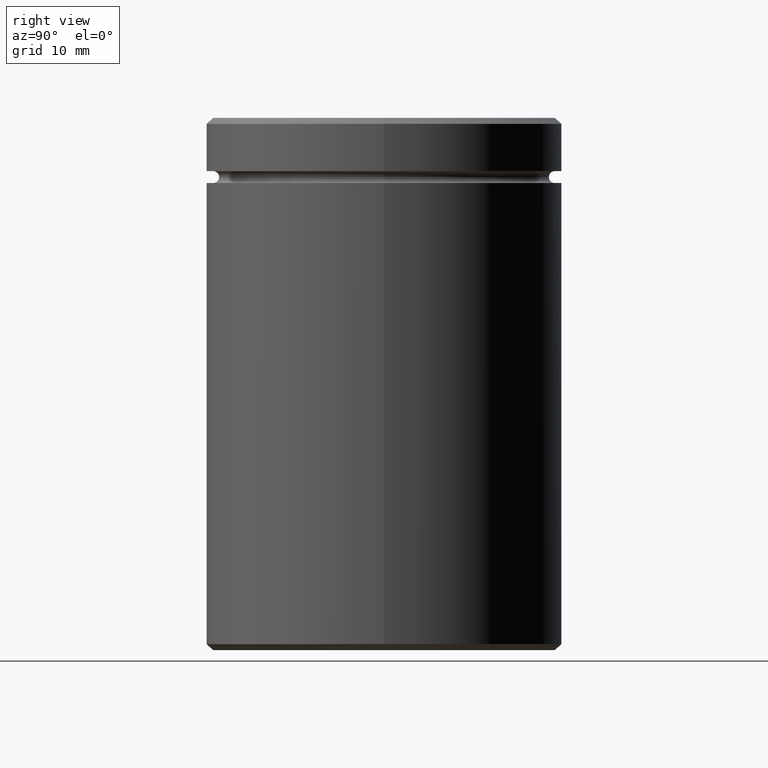
[diagram: clean part render]
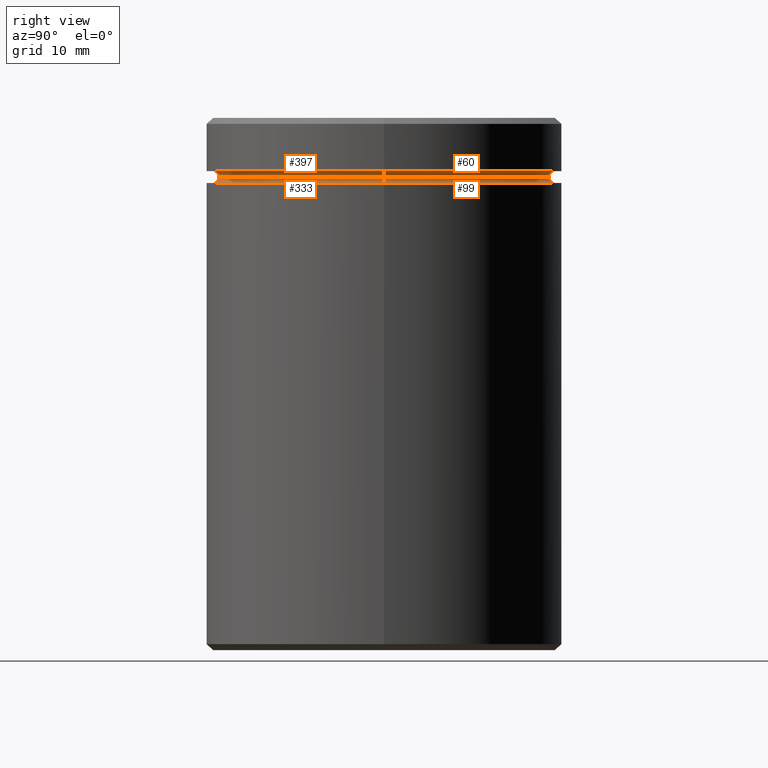
[diagram: same view with one multi-face feature highlighted, each face labeled with its STEP entity id]
A machine part, right view. The highlighted faces form ONE feature: a constant-radius fillet chain: 4 tangent blend faces with common blend radius 0.5 mm. The faces share edges in the B-rep.
Their STEP definitions:
[1] entity #99 (Torus):
#31 = CARTESIAN_POINT ( 'NONE',  ( 0.000000000000000000, 0.000000000000000000, -5.500000000000000000 ) ) ;
#33 = EDGE_CURVE ( 'NONE', #551, #413, #180, .T. ) ;
#65 = CARTESIAN_POINT ( 'NONE',  ( 14.49999999999999822, 0.000000000000000000, -5.500000000000000000 ) ) ;
#79 = ORIENTED_EDGE ( 'NONE', *, *, #549, .F. ) ;
#99 = ADVANCED_FACE ( 'NONE', ( #561 ), #241, .F. ) ;
#110 = AXIS2_PLACEMENT_3D ( 'NONE', #31, #124, #264 ) ;
#124 = DIRECTION ( 'NONE',  ( 0.000000000000000000, 0.000000000000000000, -1.000000000000000000 ) ) ;
#154 = EDGE_CURVE ( 'NONE', #171, #302, #273, .T. ) ;
#156 = DIRECTION ( 'NONE',  ( 1.000000000000000000, 0.000000000000000000, 0.000000000000000000 ) ) ;
#171 = VERTEX_POINT ( 'NONE', #411 ) ;
#174 = CIRCLE ( 'NONE', #110, 14.49999999999999822 ) ;
#180 = CIRCLE ( 'NONE', #308, 0.5000000000000004441 ) ;
#184 = ORIENTED_EDGE ( 'NONE', *, *, #33, .T. ) ;
#186 = ORIENTED_EDGE ( 'NONE', *, *, #154, .F. ) ;
#208 = AXIS2_PLACEMENT_3D ( 'NONE', #268, #350, #211 ) ;
#211 = DIRECTION ( 'NONE',  ( 1.000000000000000000, 0.000000000000000000, 0.000000000000000000 ) ) ;
#240 = DIRECTION ( 'NONE',  ( 1.224646799147353207E-16, 1.000000000000000000, 0.000000000000000000 ) ) ;
#241 = TOROIDAL_SURFACE ( 'NONE', #208, 14.49999999999999822, 0.5000000000000000000 ) ;
#264 = DIRECTION ( 'NONE',  ( 1.000000000000000000, 0.000000000000000000, 0.000000000000000000 ) ) ;
#268 = CARTESIAN_POINT ( 'NONE',  ( 0.000000000000000000, 0.000000000000000000, -4.999999999999999112 ) ) ;
#273 = CIRCLE ( 'NONE', #280, 0.5000000000000004441 ) ;
#280 = AXIS2_PLACEMENT_3D ( 'NONE', #318, #240, #365 ) ;
#302 = VERTEX_POINT ( 'NONE', #378 ) ;
#308 = AXIS2_PLACEMENT_3D ( 'NONE', #310, #441, #569 ) ;
#310 = CARTESIAN_POINT ( 'NONE',  ( 14.49999999999999822, 0.000000000000000000, -4.999999999999999112 ) ) ;
#318 = CARTESIAN_POINT ( 'NONE',  ( -14.49999999999999822, 1.775737858763662015E-15, -4.999999999999999112 ) ) ;
#321 = AXIS2_PLACEMENT_3D ( 'NONE', #375, #370, #156 ) ;
#350 = DIRECTION ( 'NONE',  ( -0.000000000000000000, -0.000000000000000000, 1.000000000000000000 ) ) ;
#365 = DIRECTION ( 'NONE',  ( -1.000000000000000000, 1.224646799147349509E-16, 0.000000000000000000 ) ) ;
#370 = DIRECTION ( 'NONE',  ( -0.000000000000000000, -0.000000000000000000, 1.000000000000000000 ) ) ;
#375 = CARTESIAN_POINT ( 'NONE',  ( 0.000000000000000000, 0.000000000000000000, -4.999999999999999112 ) ) ;
#378 = CARTESIAN_POINT ( 'NONE',  ( -14.49999999999999822, 1.775737858763662015E-15, -5.500000000000000000 ) ) ;
#389 = CIRCLE ( 'NONE', #321, 13.99999999999999822 ) ;
#400 = EDGE_CURVE ( 'NONE', #551, #171, #389, .T. ) ;
#411 = CARTESIAN_POINT ( 'NONE',  ( -13.99999999999999822, 1.745121688784978228E-15, -4.999999999999999112 ) ) ;
#413 = VERTEX_POINT ( 'NONE', #65 ) ;
#441 = DIRECTION ( 'NONE',  ( 0.000000000000000000, -1.000000000000000000, 0.000000000000000000 ) ) ;
#486 = ORIENTED_EDGE ( 'NONE', *, *, #400, .F. ) ;
#518 = EDGE_LOOP ( 'NONE', ( #186, #486, #184, #79 ) ) ;
#549 = EDGE_CURVE ( 'NONE', #302, #413, #174, .T. ) ;
#551 = VERTEX_POINT ( 'NONE', #562 ) ;
#561 = FACE_OUTER_BOUND ( 'NONE', #518, .T. ) ;
#562 = CARTESIAN_POINT ( 'NONE',  ( 13.99999999999999822, 0.000000000000000000, -4.999999999999999112 ) ) ;
#569 = DIRECTION ( 'NONE',  ( 0.000000000000000000, 0.000000000000000000, -1.000000000000000000 ) ) ;
[2] entity #60 (Torus):
#55 = CIRCLE ( 'NONE', #346, 0.5000000000000004441 ) ;
#60 = ADVANCED_FACE ( 'NONE', ( #557 ), #436, .F. ) ;
#75 = DIRECTION ( 'NONE',  ( -1.000000000000000000, 0.000000000000000000, 0.000000000000000000 ) ) ;
#76 = AXIS2_PLACEMENT_3D ( 'NONE', #228, #540, #398 ) ;
#138 = EDGE_LOOP ( 'NONE', ( #426, #491, #205, #466 ) ) ;
#144 = DIRECTION ( 'NONE',  ( -0.000000000000000000, -0.000000000000000000, 1.000000000000000000 ) ) ;
#156 = DIRECTION ( 'NONE',  ( 1.000000000000000000, 0.000000000000000000, 0.000000000000000000 ) ) ;
#159 = CARTESIAN_POINT ( 'NONE',  ( 14.49999999999999822, 1.775737858763662015E-15, -4.500000000000000888 ) ) ;
#171 = VERTEX_POINT ( 'NONE', #411 ) ;
#196 = AXIS2_PLACEMENT_3D ( 'NONE', #521, #297, #75 ) ;
#205 = ORIENTED_EDGE ( 'NONE', *, *, #251, .T. ) ;
#209 = CIRCLE ( 'NONE', #335, 14.49999999999999822 ) ;
#228 = CARTESIAN_POINT ( 'NONE',  ( -14.49999999999999822, 0.000000000000000000, -5.000000000000000888 ) ) ;
#237 = DIRECTION ( 'NONE',  ( -1.000000000000000000, 0.000000000000000000, 0.000000000000000000 ) ) ;
#246 = CARTESIAN_POINT ( 'NONE',  ( 14.49999999999999822, 1.775737858763662015E-15, -5.000000000000000888 ) ) ;
#251 = EDGE_CURVE ( 'NONE', #171, #392, #563, .T. ) ;
#263 = EDGE_CURVE ( 'NONE', #315, #392, #209, .T. ) ;
#297 = DIRECTION ( 'NONE',  ( 0.000000000000000000, 0.000000000000000000, -1.000000000000000000 ) ) ;
#315 = VERTEX_POINT ( 'NONE', #159 ) ;
#321 = AXIS2_PLACEMENT_3D ( 'NONE', #375, #370, #156 ) ;
#335 = AXIS2_PLACEMENT_3D ( 'NONE', #534, #144, #237 ) ;
#346 = AXIS2_PLACEMENT_3D ( 'NONE', #246, #377, #415 ) ;
#370 = DIRECTION ( 'NONE',  ( -0.000000000000000000, -0.000000000000000000, 1.000000000000000000 ) ) ;
#375 = CARTESIAN_POINT ( 'NONE',  ( 0.000000000000000000, 0.000000000000000000, -4.999999999999999112 ) ) ;
#377 = DIRECTION ( 'NONE',  ( -1.224646799147353207E-16, 1.000000000000000000, 0.000000000000000000 ) ) ;
#389 = CIRCLE ( 'NONE', #321, 13.99999999999999822 ) ;
#392 = VERTEX_POINT ( 'NONE', #462 ) ;
#398 = DIRECTION ( 'NONE',  ( 0.000000000000000000, 0.000000000000000000, -1.000000000000000000 ) ) ;
#400 = EDGE_CURVE ( 'NONE', #551, #171, #389, .T. ) ;
#411 = CARTESIAN_POINT ( 'NONE',  ( -13.99999999999999822, 1.745121688784978228E-15, -4.999999999999999112 ) ) ;
#415 = DIRECTION ( 'NONE',  ( -1.000000000000000000, -1.224646799147353454E-16, 0.000000000000000000 ) ) ;
#420 = EDGE_CURVE ( 'NONE', #551, #315, #55, .T. ) ;
#426 = ORIENTED_EDGE ( 'NONE', *, *, #420, .F. ) ;
#436 = TOROIDAL_SURFACE ( 'NONE', #196, 14.49999999999999822, 0.5000000000000000000 ) ;
#462 = CARTESIAN_POINT ( 'NONE',  ( -14.49999999999999822, 0.000000000000000000, -4.500000000000000888 ) ) ;
#466 = ORIENTED_EDGE ( 'NONE', *, *, #263, .F. ) ;
#491 = ORIENTED_EDGE ( 'NONE', *, *, #400, .T. ) ;
#521 = CARTESIAN_POINT ( 'NONE',  ( 0.000000000000000000, 0.000000000000000000, -5.000000000000000888 ) ) ;
#534 = CARTESIAN_POINT ( 'NONE',  ( 0.000000000000000000, 0.000000000000000000, -4.500000000000000888 ) ) ;
#540 = DIRECTION ( 'NONE',  ( -0.000000000000000000, -1.000000000000000000, -0.000000000000000000 ) ) ;
#551 = VERTEX_POINT ( 'NONE', #562 ) ;
#557 = FACE_OUTER_BOUND ( 'NONE', #138, .T. ) ;
#562 = CARTESIAN_POINT ( 'NONE',  ( 13.99999999999999822, 0.000000000000000000, -4.999999999999999112 ) ) ;
#563 = CIRCLE ( 'NONE', #76, 0.5000000000000004441 ) ;
[3] entity #397 (Torus):
#49 = ORIENTED_EDGE ( 'NONE', *, *, #251, .F. ) ;
#55 = CIRCLE ( 'NONE', #346, 0.5000000000000004441 ) ;
#76 = AXIS2_PLACEMENT_3D ( 'NONE', #228, #540, #398 ) ;
#80 = CARTESIAN_POINT ( 'NONE',  ( 0.000000000000000000, 0.000000000000000000, -4.500000000000000888 ) ) ;
#89 = CARTESIAN_POINT ( 'NONE',  ( 0.000000000000000000, 0.000000000000000000, -4.999999999999999112 ) ) ;
#91 = TOROIDAL_SURFACE ( 'NONE', #173, 14.49999999999999822, 0.5000000000000000000 ) ;
#112 = EDGE_CURVE ( 'NONE', #171, #551, #425, .T. ) ;
#115 = DIRECTION ( 'NONE',  ( 0.000000000000000000, 0.000000000000000000, -1.000000000000000000 ) ) ;
#126 = AXIS2_PLACEMENT_3D ( 'NONE', #80, #259, #128 ) ;
#128 = DIRECTION ( 'NONE',  ( -1.000000000000000000, 0.000000000000000000, 0.000000000000000000 ) ) ;
#129 = EDGE_CURVE ( 'NONE', #392, #315, #313, .T. ) ;
#159 = CARTESIAN_POINT ( 'NONE',  ( 14.49999999999999822, 1.775737858763662015E-15, -4.500000000000000888 ) ) ;
#171 = VERTEX_POINT ( 'NONE', #411 ) ;
#173 = AXIS2_PLACEMENT_3D ( 'NONE', #507, #115, #545 ) ;
#228 = CARTESIAN_POINT ( 'NONE',  ( -14.49999999999999822, 0.000000000000000000, -5.000000000000000888 ) ) ;
#246 = CARTESIAN_POINT ( 'NONE',  ( 14.49999999999999822, 1.775737858763662015E-15, -5.000000000000000888 ) ) ;
#251 = EDGE_CURVE ( 'NONE', #171, #392, #563, .T. ) ;
#259 = DIRECTION ( 'NONE',  ( -0.000000000000000000, -0.000000000000000000, 1.000000000000000000 ) ) ;
#281 = ORIENTED_EDGE ( 'NONE', *, *, #112, .T. ) ;
#282 = FACE_OUTER_BOUND ( 'NONE', #558, .T. ) ;
#298 = DIRECTION ( 'NONE',  ( 1.000000000000000000, 0.000000000000000000, 0.000000000000000000 ) ) ;
#303 = ORIENTED_EDGE ( 'NONE', *, *, #129, .F. ) ;
#313 = CIRCLE ( 'NONE', #126, 14.49999999999999822 ) ;
#315 = VERTEX_POINT ( 'NONE', #159 ) ;
#340 = DIRECTION ( 'NONE',  ( -0.000000000000000000, -0.000000000000000000, 1.000000000000000000 ) ) ;
#346 = AXIS2_PLACEMENT_3D ( 'NONE', #246, #377, #415 ) ;
#357 = ORIENTED_EDGE ( 'NONE', *, *, #420, .T. ) ;
#377 = DIRECTION ( 'NONE',  ( -1.224646799147353207E-16, 1.000000000000000000, 0.000000000000000000 ) ) ;
#392 = VERTEX_POINT ( 'NONE', #462 ) ;
#397 = ADVANCED_FACE ( 'NONE', ( #282 ), #91, .F. ) ;
#398 = DIRECTION ( 'NONE',  ( 0.000000000000000000, 0.000000000000000000, -1.000000000000000000 ) ) ;
#411 = CARTESIAN_POINT ( 'NONE',  ( -13.99999999999999822, 1.745121688784978228E-15, -4.999999999999999112 ) ) ;
#415 = DIRECTION ( 'NONE',  ( -1.000000000000000000, -1.224646799147353454E-16, 0.000000000000000000 ) ) ;
#420 = EDGE_CURVE ( 'NONE', #551, #315, #55, .T. ) ;
#424 = AXIS2_PLACEMENT_3D ( 'NONE', #89, #340, #298 ) ;
#425 = CIRCLE ( 'NONE', #424, 13.99999999999999822 ) ;
#462 = CARTESIAN_POINT ( 'NONE',  ( -14.49999999999999822, 0.000000000000000000, -4.500000000000000888 ) ) ;
#507 = CARTESIAN_POINT ( 'NONE',  ( 0.000000000000000000, 0.000000000000000000, -5.000000000000000888 ) ) ;
#540 = DIRECTION ( 'NONE',  ( -0.000000000000000000, -1.000000000000000000, -0.000000000000000000 ) ) ;
#545 = DIRECTION ( 'NONE',  ( -1.000000000000000000, 0.000000000000000000, 0.000000000000000000 ) ) ;
#551 = VERTEX_POINT ( 'NONE', #562 ) ;
#558 = EDGE_LOOP ( 'NONE', ( #281, #357, #303, #49 ) ) ;
#562 = CARTESIAN_POINT ( 'NONE',  ( 13.99999999999999822, 0.000000000000000000, -4.999999999999999112 ) ) ;
#563 = CIRCLE ( 'NONE', #76, 0.5000000000000004441 ) ;
[4] entity #333 (Torus):
#9 = EDGE_CURVE ( 'NONE', #413, #302, #107, .T. ) ;
#33 = EDGE_CURVE ( 'NONE', #551, #413, #180, .T. ) ;
#65 = CARTESIAN_POINT ( 'NONE',  ( 14.49999999999999822, 0.000000000000000000, -5.500000000000000000 ) ) ;
#89 = CARTESIAN_POINT ( 'NONE',  ( 0.000000000000000000, 0.000000000000000000, -4.999999999999999112 ) ) ;
#107 = CIRCLE ( 'NONE', #341, 14.49999999999999822 ) ;
#112 = EDGE_CURVE ( 'NONE', #171, #551, #425, .T. ) ;
#154 = EDGE_CURVE ( 'NONE', #171, #302, #273, .T. ) ;
#171 = VERTEX_POINT ( 'NONE', #411 ) ;
#180 = CIRCLE ( 'NONE', #308, 0.5000000000000004441 ) ;
#203 = FACE_OUTER_BOUND ( 'NONE', #529, .T. ) ;
#207 = DIRECTION ( 'NONE',  ( 1.000000000000000000, 0.000000000000000000, 0.000000000000000000 ) ) ;
#240 = DIRECTION ( 'NONE',  ( 1.224646799147353207E-16, 1.000000000000000000, 0.000000000000000000 ) ) ;
#273 = CIRCLE ( 'NONE', #280, 0.5000000000000004441 ) ;
#280 = AXIS2_PLACEMENT_3D ( 'NONE', #318, #240, #365 ) ;
#283 = ORIENTED_EDGE ( 'NONE', *, *, #9, .F. ) ;
#298 = DIRECTION ( 'NONE',  ( 1.000000000000000000, 0.000000000000000000, 0.000000000000000000 ) ) ;
#302 = VERTEX_POINT ( 'NONE', #378 ) ;
#308 = AXIS2_PLACEMENT_3D ( 'NONE', #310, #441, #569 ) ;
#310 = CARTESIAN_POINT ( 'NONE',  ( 14.49999999999999822, 0.000000000000000000, -4.999999999999999112 ) ) ;
#318 = CARTESIAN_POINT ( 'NONE',  ( -14.49999999999999822, 1.775737858763662015E-15, -4.999999999999999112 ) ) ;
#331 = DIRECTION ( 'NONE',  ( -0.000000000000000000, -0.000000000000000000, 1.000000000000000000 ) ) ;
#333 = ADVANCED_FACE ( 'NONE', ( #203 ), #467, .F. ) ;
#340 = DIRECTION ( 'NONE',  ( -0.000000000000000000, -0.000000000000000000, 1.000000000000000000 ) ) ;
#341 = AXIS2_PLACEMENT_3D ( 'NONE', #344, #381, #391 ) ;
#344 = CARTESIAN_POINT ( 'NONE',  ( 0.000000000000000000, 0.000000000000000000, -5.500000000000000000 ) ) ;
#365 = DIRECTION ( 'NONE',  ( -1.000000000000000000, 1.224646799147349509E-16, 0.000000000000000000 ) ) ;
#378 = CARTESIAN_POINT ( 'NONE',  ( -14.49999999999999822, 1.775737858763662015E-15, -5.500000000000000000 ) ) ;
#381 = DIRECTION ( 'NONE',  ( 0.000000000000000000, 0.000000000000000000, -1.000000000000000000 ) ) ;
#391 = DIRECTION ( 'NONE',  ( 1.000000000000000000, 0.000000000000000000, 0.000000000000000000 ) ) ;
#411 = CARTESIAN_POINT ( 'NONE',  ( -13.99999999999999822, 1.745121688784978228E-15, -4.999999999999999112 ) ) ;
#413 = VERTEX_POINT ( 'NONE', #65 ) ;
#416 = ORIENTED_EDGE ( 'NONE', *, *, #33, .F. ) ;
#424 = AXIS2_PLACEMENT_3D ( 'NONE', #89, #340, #298 ) ;
#425 = CIRCLE ( 'NONE', #424, 13.99999999999999822 ) ;
#441 = DIRECTION ( 'NONE',  ( 0.000000000000000000, -1.000000000000000000, 0.000000000000000000 ) ) ;
#464 = ORIENTED_EDGE ( 'NONE', *, *, #154, .T. ) ;
#467 = TOROIDAL_SURFACE ( 'NONE', #520, 14.49999999999999822, 0.5000000000000000000 ) ;
#468 = CARTESIAN_POINT ( 'NONE',  ( 0.000000000000000000, 0.000000000000000000, -4.999999999999999112 ) ) ;
#520 = AXIS2_PLACEMENT_3D ( 'NONE', #468, #331, #207 ) ;
#529 = EDGE_LOOP ( 'NONE', ( #553, #464, #283, #416 ) ) ;
#551 = VERTEX_POINT ( 'NONE', #562 ) ;
#553 = ORIENTED_EDGE ( 'NONE', *, *, #112, .F. ) ;
#562 = CARTESIAN_POINT ( 'NONE',  ( 13.99999999999999822, 0.000000000000000000, -4.999999999999999112 ) ) ;
#569 = DIRECTION ( 'NONE',  ( 0.000000000000000000, 0.000000000000000000, -1.000000000000000000 ) ) ;